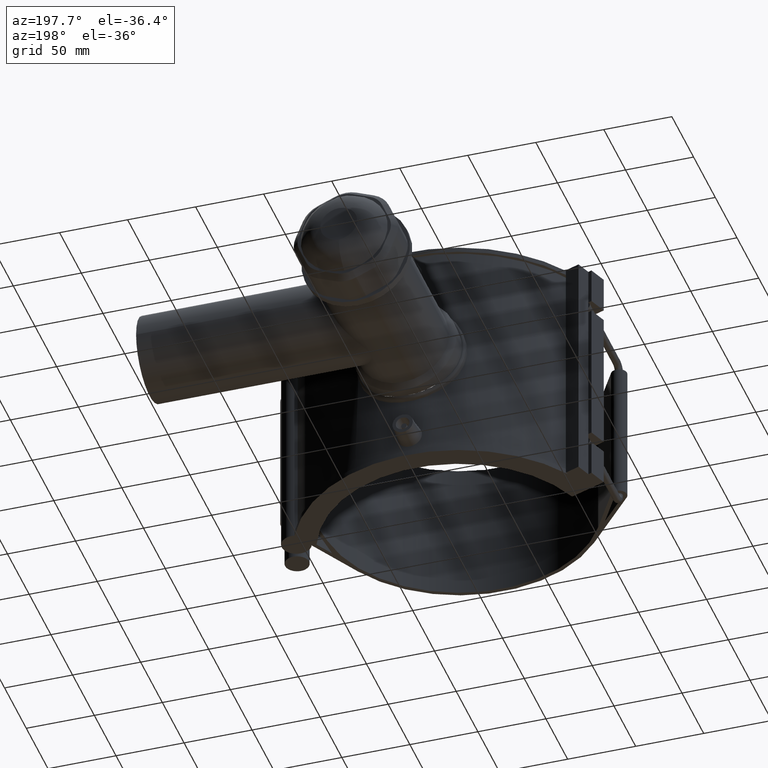
[diagram: clean part render]
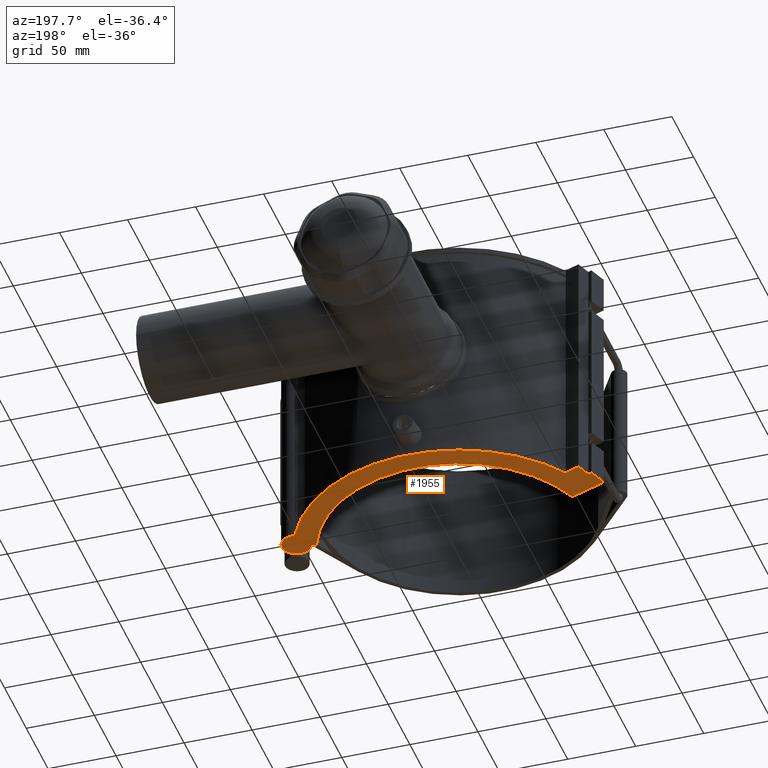
[diagram: same view with one face highlighted and labeled with its STEP entity id]
A machine part, auxiliary view. The second image highlights one B-rep face of the part: STEP entity #1955.
In plain terms, the highlighted planar face has unit normal (0, 0, 1).
Its self-contained STEP definition (entity closure, byte-faithful):
#137=LINE('',#3489,#298);
#153=LINE('',#3532,#314);
#157=LINE('',#3538,#318);
#168=LINE('',#3561,#329);
#177=LINE('',#3578,#338);
#179=LINE('',#3581,#340);
#181=LINE('',#3596,#342);
#298=VECTOR('',#2558,27.9999999999998);
#314=VECTOR('',#2602,2.79999999999999);
#318=VECTOR('',#2610,14.);
#329=VECTOR('',#2627,2.28628358384368);
#338=VECTOR('',#2642,11.2);
#340=VECTOR('',#2646,11.2);
#342=VECTOR('',#2662,3.23076923076922);
#534=FACE_OUTER_BOUND('',#676,.T.);
#676=EDGE_LOOP('',(#1661,#1662,#1663,#1664,#1665,#1666,#1667,#1668,#1669,
#1670));
#796=CIRCLE('',#2149,116.28);
#797=CIRCLE('',#2150,10.7692307692308);
#798=CIRCLE('',#2151,100.);
#941=VERTEX_POINT('',#3486);
#942=VERTEX_POINT('',#3488);
#954=VERTEX_POINT('',#3529);
#955=VERTEX_POINT('',#3531);
#963=VERTEX_POINT('',#3558);
#964=VERTEX_POINT('',#3560);
#969=VERTEX_POINT('',#3576);
#973=VERTEX_POINT('',#3591);
#974=VERTEX_POINT('',#3593);
#975=VERTEX_POINT('',#3595);
#1167=EDGE_CURVE('',#942,#941,#137,.T.);
#1189=EDGE_CURVE('',#955,#954,#153,.T.);
#1193=EDGE_CURVE('',#941,#955,#157,.T.);
#1204=EDGE_CURVE('',#964,#963,#168,.T.);
#1213=EDGE_CURVE('',#954,#969,#177,.T.);
#1215=EDGE_CURVE('',#969,#964,#179,.T.);
#1220=EDGE_CURVE('',#973,#963,#796,.T.);
#1221=EDGE_CURVE('',#973,#974,#797,.T.);
#1222=EDGE_CURVE('',#974,#975,#181,.T.);
#1223=EDGE_CURVE('',#975,#942,#798,.T.);
#1661=ORIENTED_EDGE('',*,*,#1167,.T.);
#1662=ORIENTED_EDGE('',*,*,#1193,.T.);
#1663=ORIENTED_EDGE('',*,*,#1189,.T.);
#1664=ORIENTED_EDGE('',*,*,#1213,.T.);
#1665=ORIENTED_EDGE('',*,*,#1215,.T.);
#1666=ORIENTED_EDGE('',*,*,#1204,.T.);
#1667=ORIENTED_EDGE('',*,*,#1220,.F.);
#1668=ORIENTED_EDGE('',*,*,#1221,.T.);
#1669=ORIENTED_EDGE('',*,*,#1222,.T.);
#1670=ORIENTED_EDGE('',*,*,#1223,.T.);
#1855=PLANE('',#2148);
#1955=ADVANCED_FACE('',(#534),#1855,.F.);
#2148=AXIS2_PLACEMENT_3D('',#3590,#2656,#2657);
#2149=AXIS2_PLACEMENT_3D('',#3592,#2658,#2659);
#2150=AXIS2_PLACEMENT_3D('',#3594,#2660,#2661);
#2151=AXIS2_PLACEMENT_3D('',#3597,#2663,#2664);
#2558=DIRECTION('',(-0.939692620785908,0.342020143325669,0.));
#2602=DIRECTION('',(0.939692620785908,-0.342020143325669,0.));
#2610=DIRECTION('',(0.34202014332567,0.939692620785908,0.));
#2627=DIRECTION('',(-0.342020143325671,-0.939692620785907,0.));
#2642=DIRECTION('',(0.34202014332567,0.939692620785908,0.));
#2646=DIRECTION('',(0.939692620785909,-0.342020143325667,0.));
#2656=DIRECTION('center_axis',(0.,0.,1.));
#2657=DIRECTION('ref_axis',(1.,0.,0.));
#2658=DIRECTION('center_axis',(0.,0.,1.));
#2659=DIRECTION('ref_axis',(0.976614427290077,0.21499828001376,0.));
#2660=DIRECTION('center_axis',(0.,0.,-1.));
#2661=DIRECTION('ref_axis',(-1.,0.,0.));
#2662=DIRECTION('',(-0.939692620785908,-0.342020143325669,0.));
#2663=DIRECTION('center_axis',(0.,0.,1.));
#2664=DIRECTION('ref_axis',(-1.,0.,0.));
#3486=CARTESIAN_POINT('',(-120.280655460596,43.7785783456855,-88.));
#3488=CARTESIAN_POINT('',(-93.9692620785908,34.2020143325669,-88.));
#3489=CARTESIAN_POINT('',(-108.835892254371,39.6130252003946,-88.));
#3529=CARTESIAN_POINT('',(-112.861234115836,55.9766186353764,-88.));
#3531=CARTESIAN_POINT('',(-115.492373454037,56.9342750366882,-88.));
#3532=CARTESIAN_POINT('',(-115.492373454037,56.9342750366882,-88.));
#3538=CARTESIAN_POINT('',(-120.280655460596,43.7785783456855,-88.));
#3558=CARTESIAN_POINT('',(-99.2880061968159,60.5221465701692,-88.));
#3560=CARTESIAN_POINT('',(-98.5060511577865,62.6705503829311,-88.));
#3561=CARTESIAN_POINT('',(-98.5060511577865,62.6705503829311,-88.));
#3576=CARTESIAN_POINT('',(-109.030608510589,66.5011759881785,-88.));
#3578=CARTESIAN_POINT('',(-112.861234115836,55.9766186353764,-88.));
#3581=CARTESIAN_POINT('',(-109.030608510589,66.5011759881785,-88.));
#3590=CARTESIAN_POINT('Origin',(-122.765117249604,-4.2203370723508E-16,
-88.));
#3591=CARTESIAN_POINT('',(105.179071776369,49.5822675990262,-88.));
#3592=CARTESIAN_POINT('Origin',(0.,0.,-88.));
#3593=CARTESIAN_POINT('',(97.0051920842069,35.3070024879267,-88.));
#3594=CARTESIAN_POINT('Origin',(107.124958769594,38.9902963391263,-88.));
#3595=CARTESIAN_POINT('',(93.9692620785908,34.2020143325669,-88.));
#3596=CARTESIAN_POINT('',(-54.2021632818784,-19.7279740674402,-88.));
#3597=CARTESIAN_POINT('Origin',(0.,0.,-88.));